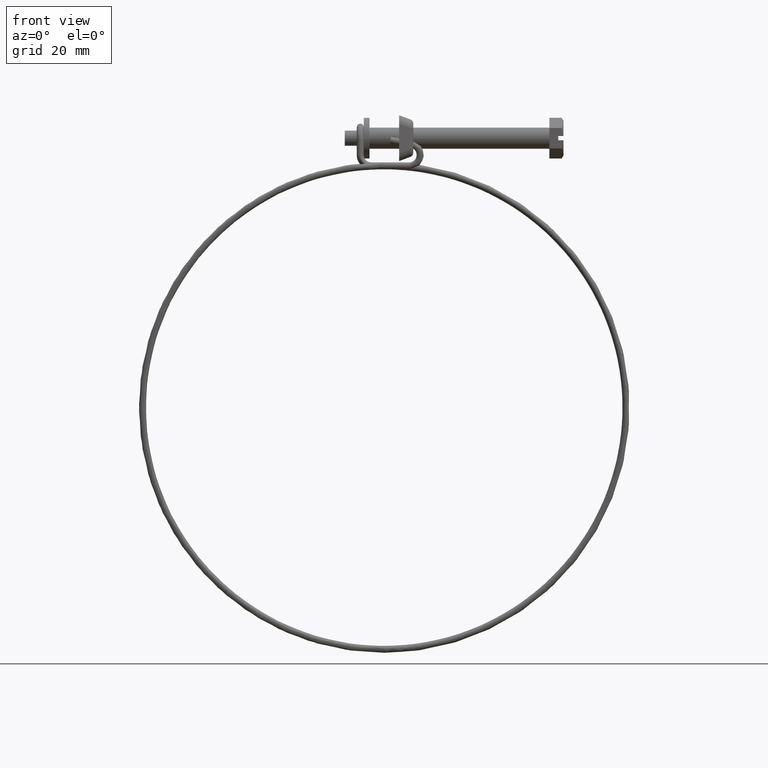
[diagram: clean part render]
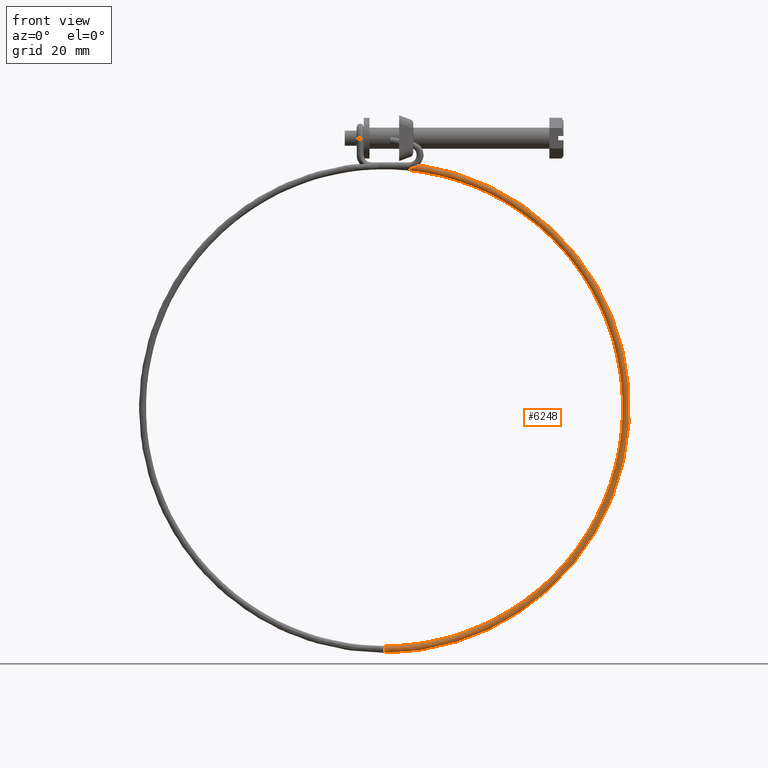
[diagram: same view with one face highlighted and labeled with its STEP entity id]
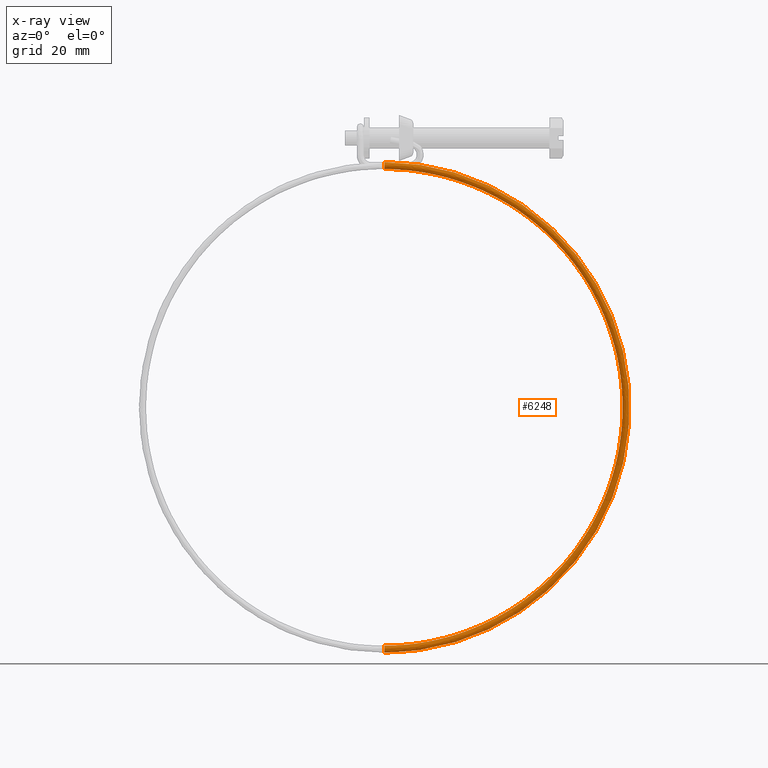
[diagram: x-ray of the same camera — body ghosted, the highlighted face saturated]
A machine part, front view. The second image highlights one B-rep face of the part: STEP entity #6248.
The next image is the same camera in x-ray: the body ghosted, the highlighted face saturated — about 0% of this face is hidden behind the body in this view.
In plain terms, the highlighted face is a freeform B-spline surface patch.
Its self-contained STEP definition (entity closure, byte-faithful):
#5498=CARTESIAN_POINT('',(-46.799999999998903,-5.060407965598079,-8.499449048334171));
#5499=VERTEX_POINT('',#5498);
#5505=CARTESIAN_POINT('',(-46.799999999998903,-4.300002000001340,-6.850001000000130));
#5506=VERTEX_POINT('',#5505);
#5507=CARTESIAN_POINT('',(-46.799999999998903,-4.300002000001340,-6.850001000000130));
#5508=CARTESIAN_POINT('',(-46.799999999998903,-5.300002000001340,-6.850001000000130));
#5509=CARTESIAN_POINT('',(-46.799999999998903,-5.300002000001340,-7.850001000000130));
#5510=CARTESIAN_POINT('',(-46.799999999998896,-5.300002000001340,-8.218920477115713));
#5511=CARTESIAN_POINT('',(-46.799999999998903,-5.060407965598079,-8.499449048334171));
#5519=(BOUNDED_CURVE()B_SPLINE_CURVE(2,(#5507,#5508,#5509,#5510,#5511),.UNSPECIFIED.,.F.,.U.)B_SPLINE_CURVE_WITH_KNOTS((3,2,3),(0.0,0.250000000000000,0.363143161350905),.UNSPECIFIED.)CURVE()GEOMETRIC_REPRESENTATION_ITEM()RATIONAL_B_SPLINE_CURVE((1.0,0.707106781186548,1.0,0.867444541140814,0.854871031638814))REPRESENTATION_ITEM(''));
#5520=EDGE_CURVE('',#5506,#5499,#5519,.T.);
#5522=CARTESIAN_POINT('',(-46.799999999968172,-4.274871902290407,-6.850316810773764));
#5523=VERTEX_POINT('',#5522);
#5524=CARTESIAN_POINT('',(-46.799999999968165,-4.274871902290408,-6.850316810773764));
#5525=CARTESIAN_POINT('',(-46.799999999998896,-4.287434965609960,-6.850001000000130));
#5526=CARTESIAN_POINT('',(-46.799999999998903,-4.300002000001340,-6.850001000000130));
#5534=(BOUNDED_CURVE()B_SPLINE_CURVE(2,(#5524,#5525,#5526),.UNSPECIFIED.,.F.,.U.)B_SPLINE_CURVE_WITH_KNOTS((3,3),(0.995579890976232,1.0),.UNSPECIFIED.)CURVE()GEOMETRIC_REPRESENTATION_ITEM()RATIONAL_B_SPLINE_CURVE((0.989826155887865,0.994821520162089,1.0))REPRESENTATION_ITEM(''));
#5535=EDGE_CURVE('',#5523,#5506,#5534,.T.);
#5654=CARTESIAN_POINT('',(-46.799999999827889,-3.300317810941621,-7.875131104364173));
#5655=VERTEX_POINT('',#5654);
#5671=CARTESIAN_POINT('',(-46.799999999998903,-4.300002000001340,-8.850001000000132));
#5672=VERTEX_POINT('',#5671);
#5673=CARTESIAN_POINT('',(-46.799999999998903,-4.300002000001340,-8.850001000000132));
#5674=CARTESIAN_POINT('',(-46.799999999998896,-3.324824141230336,-8.850001000000132));
#5675=CARTESIAN_POINT('',(-46.799999999827889,-3.300317810941621,-7.875131104364173));
#5683=(BOUNDED_CURVE()B_SPLINE_CURVE(2,(#5673,#5674,#5675),.UNSPECIFIED.,.F.,.U.)B_SPLINE_CURVE_WITH_KNOTS((3,3),(0.500000000000000,0.745579888646945),.UNSPECIFIED.)CURVE()GEOMETRIC_REPRESENTATION_ITEM()RATIONAL_B_SPLINE_CURVE((1.0,0.712285263753388,0.989826150623001))REPRESENTATION_ITEM(''));
#5684=EDGE_CURVE('',#5672,#5655,#5683,.T.);
#5686=CARTESIAN_POINT('',(-46.799999999998903,-5.060407965598079,-8.499449048334171));
#5687=CARTESIAN_POINT('',(-46.799999999998903,-4.761008314422514,-8.850001000000132));
#5688=CARTESIAN_POINT('',(-46.799999999998903,-4.300002000001340,-8.850001000000132));
#5696=(BOUNDED_CURVE()B_SPLINE_CURVE(2,(#5686,#5687,#5688),.UNSPECIFIED.,.F.,.U.)B_SPLINE_CURVE_WITH_KNOTS((3,3),(0.363143161350906,0.500000000000000),.UNSPECIFIED.)CURVE()GEOMETRIC_REPRESENTATION_ITEM()RATIONAL_B_SPLINE_CURVE((0.854871031638814,0.839662240045734,1.0))REPRESENTATION_ITEM(''));
#5697=EDGE_CURVE('',#5499,#5672,#5696,.T.);
#6095=CARTESIAN_POINT('',(-46.799999999674512,-3.300325003214103,-144.824871094287290));
#6096=VERTEX_POINT('',#6095);
#6097=CARTESIAN_POINT('',(-46.799999999944752,-4.274872093361720,-145.849677996761610));
#6098=VERTEX_POINT('',#6097);
#6110=CARTESIAN_POINT('',(-46.799999999674512,-3.300325003214103,-144.824871094287290));
#6111=CARTESIAN_POINT('',(21.245975608227297,-3.300325003214102,-144.824871093963850));
#6112=CARTESIAN_POINT('',(21.673518269163640,-3.300321429672903,-76.780238565526957));
#6113=CARTESIAN_POINT('',(22.106467524692231,-3.300317810941620,-7.875131104709432));
#6114=CARTESIAN_POINT('',(-46.799999999827889,-3.300317810941621,-7.875131104364173));
#6122=(BOUNDED_CURVE()B_SPLINE_CURVE(2,(#6110,#6111,#6112,#6113,#6114),.UNSPECIFIED.,.F.,.U.)B_SPLINE_CURVE_WITH_KNOTS((3,2,3),(-3.792515020808789,-2.0,-0.192000658026473),.UNSPECIFIED.)CURVE()GEOMETRIC_REPRESENTATION_ITEM()RATIONAL_B_SPLINE_CURVE((0.934811369269867,0.685815180529009,1.0,0.683101151026718,0.939155212469298))REPRESENTATION_ITEM(''));
#6123=EDGE_CURVE('',#6096,#5655,#6122,.T.);
#6127=CARTESIAN_POINT('',(-46.799999999944738,-4.274872093361720,-145.849677996761590));
#6128=CARTESIAN_POINT('',(22.264370939515285,-4.274872093361721,-145.849677996706700));
#6129=CARTESIAN_POINT('',(22.698312325003329,-4.274871998426329,-76.786673902493803));
#6130=CARTESIAN_POINT('',(23.137741221709604,-4.274871902290408,-6.850316810836802));
#6131=CARTESIAN_POINT('',(-46.799999999968165,-4.274871902290407,-6.850316810773765));
#6139=(BOUNDED_CURVE()B_SPLINE_CURVE(2,(#6127,#6128,#6129,#6130,#6131),.UNSPECIFIED.,.F.,.U.)B_SPLINE_CURVE_WITH_KNOTS((3,2,3),(-3.792515020813655,-2.0,-0.192000658021397),.UNSPECIFIED.)CURVE()GEOMETRIC_REPRESENTATION_ITEM()RATIONAL_B_SPLINE_CURVE((0.934811369271219,0.685815180528156,1.0,0.683101151025829,0.939155212470736))REPRESENTATION_ITEM(''));
#6140=EDGE_CURVE('',#6098,#5523,#6139,.T.);
#6145=CARTESIAN_POINT('',(-56.652549252417181,-4.253673477814976,-145.147234265569100));
#6146=CARTESIAN_POINT('',(22.197299819567714,-4.253673477814977,-156.439432870831870));
#6147=CARTESIAN_POINT('',(22.697779448758752,-4.253673477814978,-76.786674173117788));
#6148=CARTESIAN_POINT('',(23.204289178387093,-4.253673477814975,3.825792187089281));
#6149=CARTESIAN_POINT('',(-56.603689404003447,-4.253673477814978,-7.545788150507529));
#6150=CARTESIAN_POINT('',(-56.652586858154670,-4.264225937025314,-145.147496854532360));
#6151=CARTESIAN_POINT('',(22.197563172155736,-4.264225937025314,-156.439738560463380));
#6152=CARTESIAN_POINT('',(22.698044711604197,-4.264225937025315,-76.786675839835326));
#6153=CARTESIAN_POINT('',(23.204556374505994,-4.264225937025314,3.826098206349266));
#6154=CARTESIAN_POINT('',(-56.603726823250014,-4.264225937025312,-7.545525534904199));
#6155=CARTESIAN_POINT('',(-56.656187365855509,-5.274556093839961,-145.172638060307950));
#6156=CARTESIAN_POINT('',(22.222777490092447,-5.274556093839963,-156.469006378245180));
#6157=CARTESIAN_POINT('',(22.723441924415397,-5.274556093839962,-76.786835417329655));
#6158=CARTESIAN_POINT('',(23.230138685826773,-5.274556093839962,3.855397583941319));
#6159=CARTESIAN_POINT('',(-56.607309475647021,-5.274556093839963,-7.520381778515052));
#6160=CARTESIAN_POINT('',(-56.514467107015150,-5.299686189283299,-144.183050344874370));
#6161=CARTESIAN_POINT('',(21.230311993173849,-5.299686189283300,-155.316990313740230));
#6162=CARTESIAN_POINT('',(21.723777468042151,-5.299686189283300,-76.780554257648305));
#6163=CARTESIAN_POINT('',(22.223188532305599,-5.299686189283299,2.702139287828988));
#6164=CARTESIAN_POINT('',(-56.466292022769544,-5.299686189283301,-8.510069889127141));
#6165=CARTESIAN_POINT('',(-56.372746848174785,-5.324816284726636,-143.193462629440600));
#6166=CARTESIAN_POINT('',(20.237846496255244,-5.324816284726635,-154.164974249235140));
#6167=CARTESIAN_POINT('',(20.724113011668880,-5.324816284726636,-76.774273097966955));
#6168=CARTESIAN_POINT('',(21.216238378784411,-5.324816284726638,1.548880991716646));
#6169=CARTESIAN_POINT('',(-56.325274569892038,-5.324816284726638,-9.499757999739249));
#6170=CARTESIAN_POINT('',(-56.369184279446500,-4.325132095443338,-143.168586339503260));
#6171=CARTESIAN_POINT('',(20.212897864548193,-4.325132095443339,-154.136014829886850));
#6172=CARTESIAN_POINT('',(20.698983412272110,-4.325132095443338,-76.774115201959404));
#6173=CARTESIAN_POINT('',(21.190925631282791,-4.325132095443339,1.519890345107630));
#6174=CARTESIAN_POINT('',(-56.321729668324160,-4.325132095443339,-9.524636813414048));
#6175=CARTESIAN_POINT('',(-56.365621710718194,-3.325447906160037,-143.143710049565840));
#6176=CARTESIAN_POINT('',(20.187949232841156,-3.325447906160037,-154.107055410538610));
#6177=CARTESIAN_POINT('',(20.673853812875347,-3.325447906160038,-76.773957305951868));
#6178=CARTESIAN_POINT('',(21.165612883781197,-3.325447906160039,1.490899698498643));
#6179=CARTESIAN_POINT('',(-56.318184766756275,-3.325447906160038,-9.549515627088846));
#6180=CARTESIAN_POINT('',(-56.508838628198966,-3.300052420469833,-144.143748458618660));
#6181=CARTESIAN_POINT('',(21.190895814633794,-3.300052420469834,-155.271237518282330));
#6182=CARTESIAN_POINT('',(21.684075379843733,-3.300052420469834,-76.780304798788322));
#6183=CARTESIAN_POINT('',(22.183197089625377,-3.300052420469834,2.656337156627977));
#6184=CARTESIAN_POINT('',(-56.460691456183476,-3.300052420469835,-8.549375762618944));
#6185=CARTESIAN_POINT('',(-56.510322250001430,-3.299789341938913,-144.154108120124050));
#6186=CARTESIAN_POINT('',(21.201285602667280,-3.299789341938914,-155.283297587633430));
#6187=CARTESIAN_POINT('',(21.694540531366464,-3.299789341938915,-76.780370554139921));
#6188=CARTESIAN_POINT('',(22.193738512665121,-3.299789341938913,2.668410230484620));
#6189=CARTESIAN_POINT('',(-56.462167720546297,-3.299789341938916,-8.539015050110100));
#6197=(BOUNDED_SURFACE()B_SPLINE_SURFACE(2,2,((#6145,#6150,#6155,#6160,#6165,#6170,#6175,#6180,#6185),(#6146,#6151,#6156,#6161,#6166,#6171,#6176,#6181,#6186),(#6147,#6152,#6157,#6162,#6167,#6172,#6177,#6182,#6187),(#6148,#6153,#6158,#6163,#6168,#6173,#6178,#6183,#6188),(#6149,#6154,#6159,#6164,#6169,#6174,#6179,#6184,#6189)),.UNSPECIFIED.,.F.,.F.,.U.)B_SPLINE_SURFACE_WITH_KNOTS((3,2,3),(3,1,2,2,1,3),(0.0,126.386581394759800,253.765377974163500),(0.0,0.025063491482383,1.681917740974778,3.338771990467172,4.995626239959567,5.020480111802604),.UNSPECIFIED.)GEOMETRIC_REPRESENTATION_ITEM()RATIONAL_B_SPLINE_SURFACE(((0.999221511060603,0.994833205087377,0.700350304555242,0.990444899114151,0.700350304555242,0.990444899114151,0.700350304555242,0.994796503292813,0.999148107471475),(0.660090419020832,0.657191483502937,0.462654697560047,0.654292547985041,0.462654697560047,0.654292547985041,0.462654697560047,0.657167238125225,0.660041928265410),(1.008861282393702,1.004430641196851,0.707106781186548,1.0,0.707106781186548,1.0,0.707106781186548,1.004393585329738,1.008787170659476),(0.657352345541978,0.654465434889510,0.460735592963536,0.651578524237042,0.460735592963536,0.651578524237042,0.460735592963536,0.654441290082302,0.657304055927563),(1.004588698444642,1.000176821261033,0.704112144424989,0.995764944077423,0.704112144424989,0.995764944077423,0.704112144424989,1.000139922327589,1.004514900577755)))REPRESENTATION_ITEM('')SURFACE());
#6198=CARTESIAN_POINT('',(-46.800000000001113,-4.300002000000009,-143.850000999999990));
#6199=VERTEX_POINT('',#6198);
#6200=CARTESIAN_POINT('',(-46.800000000001113,-4.300002000000009,-143.850000999999990));
#6201=CARTESIAN_POINT('',(-46.799999999957272,-4.038201646737117,-143.850000974656810));
#6202=CARTESIAN_POINT('',(-46.799999999896087,-3.778013028668513,-143.957774035685500));
#6203=CARTESIAN_POINT('',(-46.799999999775601,-3.413694996509544,-144.322089344470410));
#6204=CARTESIAN_POINT('',(-46.799999999716981,-3.306973642158186,-144.571623483690700));
#6205=CARTESIAN_POINT('',(-46.799999999674512,-3.300325003214103,-144.824871094287290));
#6206=B_SPLINE_CURVE_WITH_KNOTS('',3,(#6200,#6201,#6202,#6203,#6204,#6205),.UNSPECIFIED.,.F.,.U.,(4,2,4),(0.500000000000000,0.625000000000000,0.745999309580257),.UNSPECIFIED.);
#6207=EDGE_CURVE('',#6199,#6096,#6206,.T.);
#6208=ORIENTED_EDGE('',*,*,#6207,.F.);
#6209=CARTESIAN_POINT('',(-46.800000000001113,-5.028949982883807,-145.534537745304700));
#6210=VERTEX_POINT('',#6209);
#6211=CARTESIAN_POINT('',(-46.800000000001113,-5.028949982883729,-145.534537745304700));
#6212=CARTESIAN_POINT('',(-46.800000000001113,-5.200678314366749,-145.351170097699110));
#6213=CARTESIAN_POINT('',(-46.800000000001113,-5.300002000000000,-145.101328412287100));
#6214=CARTESIAN_POINT('',(-46.800000000001113,-5.300002000000000,-144.588201612200610));
#6215=CARTESIAN_POINT('',(-46.800000000001113,-5.192228903609820,-144.328014341236610));
#6216=CARTESIAN_POINT('',(-46.800000000001113,-4.821988658763289,-143.957774096390010));
#6217=CARTESIAN_POINT('',(-46.800000000001113,-4.561801387799160,-143.850000999999990));
#6218=CARTESIAN_POINT('',(-46.800000000001113,-4.300002000000009,-143.850000999999990));
#6219=B_SPLINE_CURVE_WITH_KNOTS('',3,(#6211,#6212,#6213,#6214,#6215,#6216,#6217,#6218),.UNSPECIFIED.,.F.,.U.,(4,2,2,4),(0.129999999999964,0.250000000000000,0.375000000000000,0.500000000000000),.UNSPECIFIED.);
#6220=EDGE_CURVE('',#6210,#6199,#6219,.T.);
#6221=ORIENTED_EDGE('',*,*,#6220,.F.);
#6222=CARTESIAN_POINT('',(-46.800000000001113,-4.300002000000009,-145.850000999999990));
#6223=VERTEX_POINT('',#6222);
#6224=CARTESIAN_POINT('',(-46.800000000001113,-4.300002000000009,-145.850000999999990));
#6225=CARTESIAN_POINT('',(-46.800000000001113,-4.561801387799160,-145.850000999999990));
#6226=CARTESIAN_POINT('',(-46.800000000001113,-4.821988658763289,-145.742227903609600));
#6227=CARTESIAN_POINT('',(-46.800000000001113,-5.014513586083432,-145.549702976289410));
#6228=CARTESIAN_POINT('',(-46.800000000001113,-5.021794635738657,-145.542178063954910));
#6229=CARTESIAN_POINT('',(-46.800000000001113,-5.028949982883729,-145.534537745304700));
#6230=B_SPLINE_CURVE_WITH_KNOTS('',3,(#6224,#6225,#6226,#6227,#6228,#6229),.UNSPECIFIED.,.F.,.U.,(4,2,4),(0.0,0.125000000000000,0.129999999999964),.UNSPECIFIED.);
#6231=EDGE_CURVE('',#6223,#6210,#6230,.T.);
#6232=ORIENTED_EDGE('',*,*,#6231,.F.);
#6233=CARTESIAN_POINT('',(-46.799999999944752,-4.274872093361720,-145.849677996761610));
#6234=CARTESIAN_POINT('',(-46.799999999963532,-4.283245472035612,-145.849895397774590));
#6235=CARTESIAN_POINT('',(-46.799999999982319,-4.291622910328214,-145.850003397795690));
#6236=CARTESIAN_POINT('',(-46.800000000001113,-4.300002000000009,-145.850000999999990));
#6237=B_SPLINE_CURVE_WITH_KNOTS('',3,(#6233,#6234,#6235,#6236),.UNSPECIFIED.,.F.,.U.,(4,4),(0.995999309432817,1.0),.UNSPECIFIED.);
#6238=EDGE_CURVE('',#6098,#6223,#6237,.T.);
#6239=ORIENTED_EDGE('',*,*,#6238,.F.);
#6240=ORIENTED_EDGE('',*,*,#6140,.T.);
#6241=ORIENTED_EDGE('',*,*,#5535,.T.);
#6242=ORIENTED_EDGE('',*,*,#5520,.T.);
#6243=ORIENTED_EDGE('',*,*,#5697,.T.);
#6244=ORIENTED_EDGE('',*,*,#5684,.T.);
#6245=ORIENTED_EDGE('',*,*,#6123,.F.);
#6246=EDGE_LOOP('',(#6208,#6221,#6232,#6239,#6240,#6241,#6242,#6243,#6244,#6245));
#6247=FACE_OUTER_BOUND('',#6246,.T.);
#6248=ADVANCED_FACE('',(#6247),#6197,.T.);